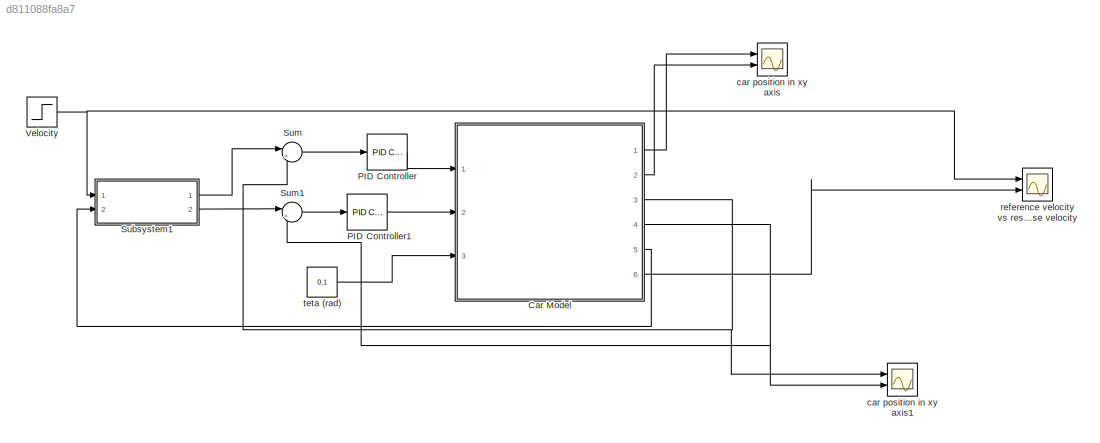
MODEL slx_d811088fa8a7
KIND model
CONFIG AbsTol = auto
CONFIG EnableMultiTasking = off
CONFIG FixedStep = auto
CONFIG MaxStep = auto
CONFIG MinStep = auto
CONFIG RelTol = 1e-3
CONFIG SampleTimeConstraint = Unconstrained
CONFIG Solver = VariableStepAuto
CONFIG SolverName = VariableStepAuto
CONFIG StartTime = 0.0
CONFIG StopTime = 15
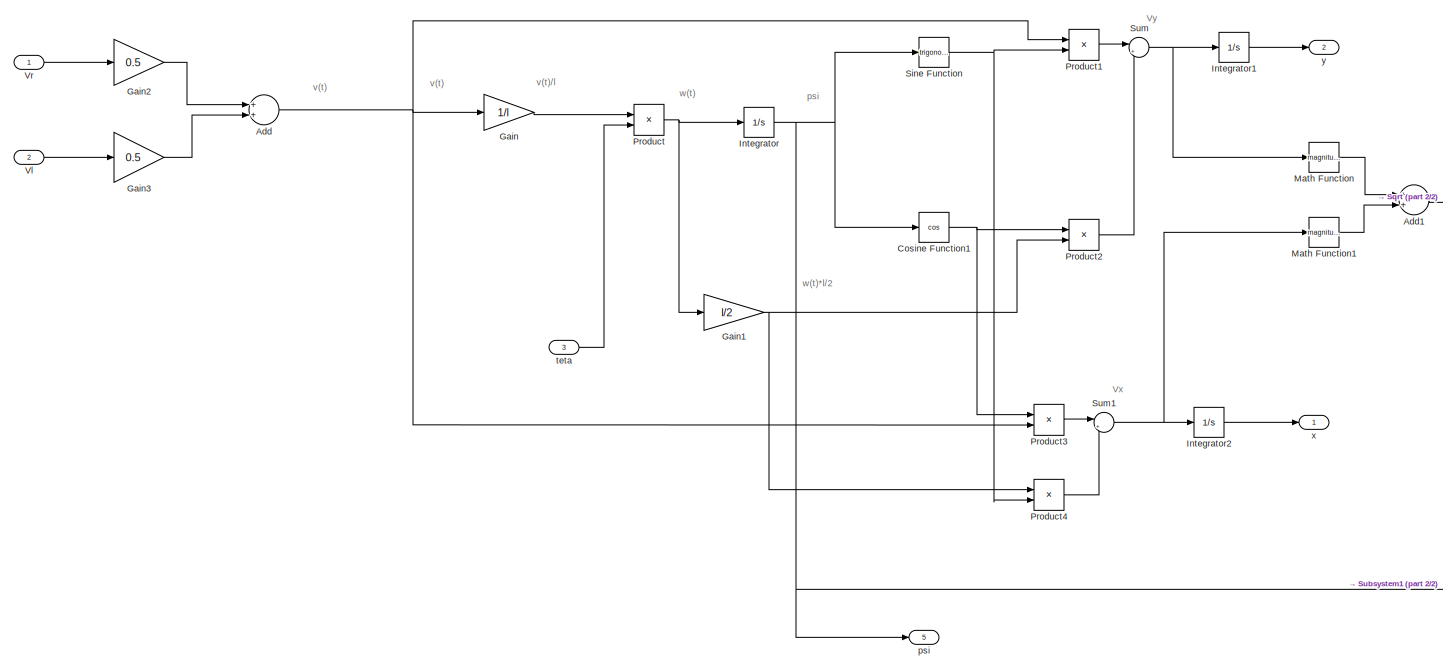
[diagram: Car Model - part 1/2, most of the canvas]
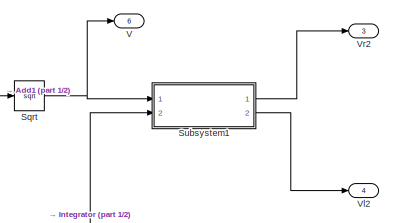
[diagram: Car Model - part 2/2, middle right region]
BLOCK [SubSystem] Car Model
  Ports = [3, 6]
  RequestExecContextInheritance = off
  Variant = off
BLOCK [Sum] Car Model/Add
  InputSameDT = off
  OutDataTypeStr = Inherit: Inherit via internal rule
  Ports = [2, 1]
  SaturateOnIntegerOverflow = off
BLOCK [Sum] Car Model/Add1
  InputSameDT = off
  OutDataTypeStr = Inherit: Inherit via internal rule
  Ports = [2, 1]
  SaturateOnIntegerOverflow = off
BLOCK [Trigonometry] Car Model/Cosine Function1
  Operator = cos
  Ports = [1, 1]
BLOCK [Gain] Car Model/Gain
  Gain = 1/l
  OutDataTypeStr = Inherit: Inherit via internal rule
  ParamDataTypeStr = Inherit: Inherit via internal rule
  SaturateOnIntegerOverflow = off
BLOCK [Gain] Car Model/Gain1
  Gain = l/2
  OutDataTypeStr = Inherit: Inherit via internal rule
  ParamDataTypeStr = Inherit: Inherit via internal rule
  SaturateOnIntegerOverflow = off
BLOCK [Gain] Car Model/Gain2
  Gain = 0.5
  OutDataTypeStr = Inherit: Inherit via internal rule
  ParamDataTypeStr = Inherit: Inherit via internal rule
  SaturateOnIntegerOverflow = off
BLOCK [Gain] Car Model/Gain3
  Gain = 0.5
  OutDataTypeStr = Inherit: Inherit via internal rule
  ParamDataTypeStr = Inherit: Inherit via internal rule
  SaturateOnIntegerOverflow = off
BLOCK [Integrator] Car Model/Integrator
  Ports = [1, 1]
BLOCK [Integrator] Car Model/Integrator1
  Ports = [1, 1]
BLOCK [Integrator] Car Model/Integrator2
  Ports = [1, 1]
BLOCK [Math] Car Model/Math Function
  Operator = magnitude^2
  Ports = [1, 1]
BLOCK [Math] Car Model/Math Function1
  Operator = magnitude^2
  Ports = [1, 1]
BLOCK [Product] Car Model/Product
  InputSameDT = off
  OutDataTypeStr = Inherit: Inherit via internal rule
  Ports = [2, 1]
  RndMeth = Floor
  SaturateOnIntegerOverflow = off
BLOCK [Product] Car Model/Product1
  InputSameDT = off
  OutDataTypeStr = Inherit: Inherit via internal rule
  Ports = [2, 1]
  RndMeth = Floor
  SaturateOnIntegerOverflow = off
BLOCK [Product] Car Model/Product2
  InputSameDT = off
  OutDataTypeStr = Inherit: Inherit via internal rule
  Ports = [2, 1]
  RndMeth = Floor
  SaturateOnIntegerOverflow = off
BLOCK [Product] Car Model/Product3
  InputSameDT = off
  OutDataTypeStr = Inherit: Inherit via internal rule
  Ports = [2, 1]
  RndMeth = Floor
  SaturateOnIntegerOverflow = off
BLOCK [Product] Car Model/Product4
  InputSameDT = off
  OutDataTypeStr = Inherit: Inherit via internal rule
  Ports = [2, 1]
  RndMeth = Floor
  SaturateOnIntegerOverflow = off
BLOCK [Trigonometry] Car Model/Sine Function
  Ports = [1, 1]
BLOCK [Sqrt] Car Model/Sqrt
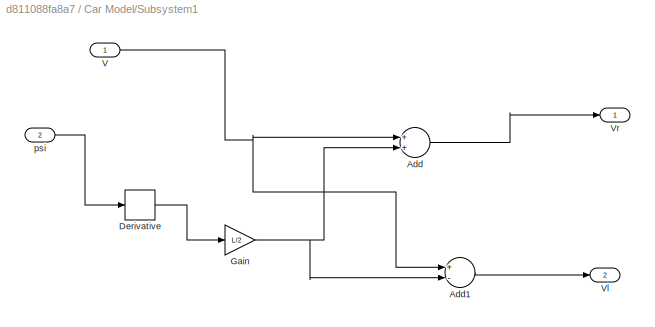
BLOCK [SubSystem] Car Model/Subsystem1
  Ports = [2, 2]
  RequestExecContextInheritance = off
  Variant = off
BLOCK [Sum] Car Model/Subsystem1/Add
  InputSameDT = off
  OutDataTypeStr = Inherit: Inherit via internal rule
  Ports = [2, 1]
  SaturateOnIntegerOverflow = off
BLOCK [Sum] Car Model/Subsystem1/Add1
  InputSameDT = off
  Inputs = +-
  OutDataTypeStr = Inherit: Inherit via internal rule
  Ports = [2, 1]
  SaturateOnIntegerOverflow = off
BLOCK [Derivative] Car Model/Subsystem1/Derivative
BLOCK [Gain] Car Model/Subsystem1/Gain
  Gain = L/2
  OutDataTypeStr = Inherit: Inherit via internal rule
  ParamDataTypeStr = Inherit: Inherit via internal rule
  SaturateOnIntegerOverflow = off
BLOCK [Inport] Car Model/Subsystem1/V
  IconDisplay = Port number
BLOCK [Outport] Car Model/Subsystem1/Vl
  IconDisplay = Port number
  Port = 2
BLOCK [Outport] Car Model/Subsystem1/Vr
  IconDisplay = Port number
BLOCK [Inport] Car Model/Subsystem1/psi
  IconDisplay = Port number
  Port = 2
BLOCK [Sum] Car Model/Sum
  IconShape = round
  InputSameDT = off
  Inputs = |++
  OutDataTypeStr = Inherit: Inherit via internal rule
  Ports = [2, 1]
  SaturateOnIntegerOverflow = off
BLOCK [Sum] Car Model/Sum1
  IconShape = round
  InputSameDT = off
  Inputs = |+-
  OutDataTypeStr = Inherit: Inherit via internal rule
  Ports = [2, 1]
  SaturateOnIntegerOverflow = off
BLOCK [Outport] Car Model/V
  IconDisplay = Port number
  Port = 6
BLOCK [Inport] Car Model/Vl 
  IconDisplay = Port number
  Port = 2
BLOCK [Outport] Car Model/Vl2 
  IconDisplay = Port number
  Port = 4
BLOCK [Inport] Car Model/Vr
  IconDisplay = Port number
BLOCK [Outport] Car Model/Vr2
  IconDisplay = Port number
  Port = 3
BLOCK [Outport] Car Model/psi
  IconDisplay = Port number
  Port = 5
BLOCK [Inport] Car Model/teta
  IconDisplay = Port number
  Port = 3
BLOCK [Outport] Car Model/x
  IconDisplay = Port number
BLOCK [Outport] Car Model/y
  IconDisplay = Port number
  Port = 2
BLOCK [Reference] PID Controller  REF=simulink/Continuous/PID Controller
  Ports = [1, 1]
  SourceBlock = simulink/Continuous/PID Controller
  SourceProductBaseCode = SL
  SourceProductName = Simulink
  SourceType = PID 1dof
BLOCK [Reference] PID Controller1  REF=simulink/Continuous/PID Controller
  Ports = [1, 1]
  SourceBlock = simulink/Continuous/PID Controller
  SourceProductBaseCode = SL
  SourceProductName = Simulink
  SourceType = PID 1dof
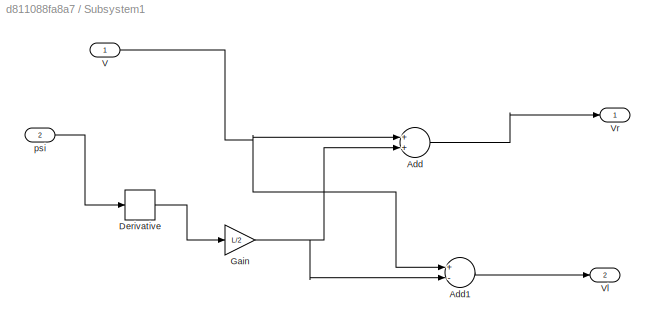
BLOCK [SubSystem] Subsystem1
  Ports = [2, 2]
  RequestExecContextInheritance = off
  Variant = off
BLOCK [Sum] Subsystem1/Add
  InputSameDT = off
  OutDataTypeStr = Inherit: Inherit via internal rule
  Ports = [2, 1]
  SaturateOnIntegerOverflow = off
BLOCK [Sum] Subsystem1/Add1
  InputSameDT = off
  Inputs = +-
  OutDataTypeStr = Inherit: Inherit via internal rule
  Ports = [2, 1]
  SaturateOnIntegerOverflow = off
BLOCK [Derivative] Subsystem1/Derivative
BLOCK [Gain] Subsystem1/Gain
  Gain = L/2
  OutDataTypeStr = Inherit: Inherit via internal rule
  ParamDataTypeStr = Inherit: Inherit via internal rule
  SaturateOnIntegerOverflow = off
BLOCK [Inport] Subsystem1/V
  IconDisplay = Port number
BLOCK [Outport] Subsystem1/Vl
  IconDisplay = Port number
  Port = 2
BLOCK [Outport] Subsystem1/Vr
  IconDisplay = Port number
BLOCK [Inport] Subsystem1/psi
  IconDisplay = Port number
  Port = 2
BLOCK [Sum] Sum
  IconShape = round
  InputSameDT = off
  Inputs = |+-
  OutDataTypeStr = Inherit: Inherit via internal rule
  Ports = [2, 1]
  SaturateOnIntegerOverflow = off
BLOCK [Sum] Sum1
  IconShape = round
  InputSameDT = off
  Inputs = |+-
  OutDataTypeStr = Inherit: Inherit via internal rule
  Ports = [2, 1]
  SaturateOnIntegerOverflow = off
BLOCK [Step] Velocity 
  SampleTime = 0
BLOCK [Scope] car position in xy axis
  NumInputPorts = 2
  Ports = [2]
  ScopeSpecificationString = Simulink.scopes.TimeScopeBlockCfg('CurrentConfiguration', extmgr.ConfigurationSet(extmgr.Configuration('Core','General UI',true),extmgr.Configuration('Core','Source UI',true),extmgr.Configuration('Sources','WiredSimulink',true,'DataLoggingVariableName','ScopeData1'),extmgr.Configuration('Visuals','Time Domain',true,'SerializedDisplays',{struct('MinYLimReal','-1.13668','MaxYLimReal','1.90447','YLab...<+1444ch>
BLOCK [Scope] car position in xy axis1
  NumInputPorts = 2
  Ports = [2]
  ScopeSpecificationString = Simulink.scopes.TimeScopeBlockCfg('CurrentConfiguration', extmgr.ConfigurationSet(extmgr.Configuration('Core','General UI',true),extmgr.Configuration('Core','Source UI',true),extmgr.Configuration('Sources','WiredSimulink',true,'DataLoggingVariableName','ScopeData1'),extmgr.Configuration('Visuals','Time Domain',true,'SerializedDisplays',{struct('MinYLimReal','-0.13116','MaxYLimReal','1.18047','YLab...<+1413ch>
BLOCK [Scope] reference velocity vs response velocity
  NumInputPorts = 2
  Ports = [2]
  ScopeSpecificationString = Simulink.scopes.TimeScopeBlockCfg('CurrentConfiguration', extmgr.ConfigurationSet(extmgr.Configuration('Core','General UI',true),extmgr.Configuration('Core','Source UI',true),extmgr.Configuration('Sources','WiredSimulink',true),extmgr.Configuration('Visuals','Time Domain',true,'SerializedDisplays',{struct('MinYLimReal','-0.125','MaxYLimReal','1.125','YLabelReal','','MinYLimMag','0.00000','MaxYLimM...<+1363ch>
BLOCK [Constant] teta (rad)
  Value = 0.1
ANNOTATION Car Model: Vx
ANNOTATION Car Model: Vy
ANNOTATION Car Model: psi
ANNOTATION Car Model: v(t)
ANNOTATION Car Model: v(t)/l
ANNOTATION Car Model: w(t)
ANNOTATION Car Model: w(t)*l/2
LINE Car Model/Add1:1 -> Car Model/Sqrt:1
NET Car Model/Add:1 -> Car Model/Gain:1, Car Model/Product1:1, Car Model/Product3:2
NET Car Model/Cosine Function1:1 -> Car Model/Product2:1, Car Model/Product3:1
NET Car Model/Gain1:1 -> Car Model/Product2:2, Car Model/Product4:1
LINE Car Model/Gain2:1 -> Car Model/Add:1
LINE Car Model/Gain3:1 -> Car Model/Add:2
LINE Car Model/Gain:1 -> Car Model/Product:1
LINE Car Model/Integrator1:1 -> Car Model/y:1
LINE Car Model/Integrator2:1 -> Car Model/x:1
NET Car Model/Integrator:1 -> Car Model/Cosine Function1:1, Car Model/Sine Function:1, Car Model/Subsystem1:2, Car Model/psi:1
LINE Car Model/Math Function1:1 -> Car Model/Add1:2
LINE Car Model/Math Function:1 -> Car Model/Add1:1
LINE Car Model/Product1:1 -> Car Model/Sum:1
LINE Car Model/Product2:1 -> Car Model/Sum:2
LINE Car Model/Product3:1 -> Car Model/Sum1:1
LINE Car Model/Product4:1 -> Car Model/Sum1:2
NET Car Model/Product:1 -> Car Model/Gain1:1, Car Model/Integrator:1
NET Car Model/Sine Function:1 -> Car Model/Product1:2, Car Model/Product4:2
NET Car Model/Sqrt:1 -> Car Model/Subsystem1:1, Car Model/V:1
LINE Car Model/Subsystem1/Add1:1 -> Car Model/Subsystem1/Vl:1
LINE Car Model/Subsystem1/Add:1 -> Car Model/Subsystem1/Vr:1
LINE Car Model/Subsystem1/Derivative:1 -> Car Model/Subsystem1/Gain:1
NET Car Model/Subsystem1/Gain:1 -> Car Model/Subsystem1/Add1:2, Car Model/Subsystem1/Add:2
NET Car Model/Subsystem1/V:1 -> Car Model/Subsystem1/Add1:1, Car Model/Subsystem1/Add:1
LINE Car Model/Subsystem1/psi:1 -> Car Model/Subsystem1/Derivative:1
LINE Car Model/Subsystem1:1 -> Car Model/Vr2:1
LINE Car Model/Subsystem1:2 -> Car Model/Vl2 :1
NET Car Model/Sum1:1 -> Car Model/Integrator2:1, Car Model/Math Function1:1
NET Car Model/Sum:1 -> Car Model/Integrator1:1, Car Model/Math Function:1
LINE Car Model/Vl :1 -> Car Model/Gain3:1
LINE Car Model/Vr:1 -> Car Model/Gain2:1
LINE Car Model/teta:1 -> Car Model/Product:2
LINE Car Model:1 -> car position in xy axis:1
LINE Car Model:2 -> car position in xy axis:2
NET Car Model:3 -> Sum:2, car position in xy axis1:1
NET Car Model:4 -> Sum1:2, car position in xy axis1:2
LINE Car Model:5 -> Subsystem1:2
LINE Car Model:6 -> reference velocity vs response velocity:2
LINE PID Controller1:1 -> Car Model:2
LINE PID Controller:1 -> Car Model:1
LINE Subsystem1/Add1:1 -> Subsystem1/Vl:1
LINE Subsystem1/Add:1 -> Subsystem1/Vr:1
LINE Subsystem1/Derivative:1 -> Subsystem1/Gain:1
NET Subsystem1/Gain:1 -> Subsystem1/Add1:2, Subsystem1/Add:2
NET Subsystem1/V:1 -> Subsystem1/Add1:1, Subsystem1/Add:1
LINE Subsystem1/psi:1 -> Subsystem1/Derivative:1
LINE Subsystem1:1 -> Sum:1
LINE Subsystem1:2 -> Sum1:1
LINE Sum1:1 -> PID Controller1:1
LINE Sum:1 -> PID Controller:1
NET Velocity :1 -> Subsystem1:1, reference velocity vs response velocity:1
LINE teta (rad):1 -> Car Model:3
note: NET lines group one-source signal fan-out (src -> all destinations, sorted); 1:1 wires keep LINE
